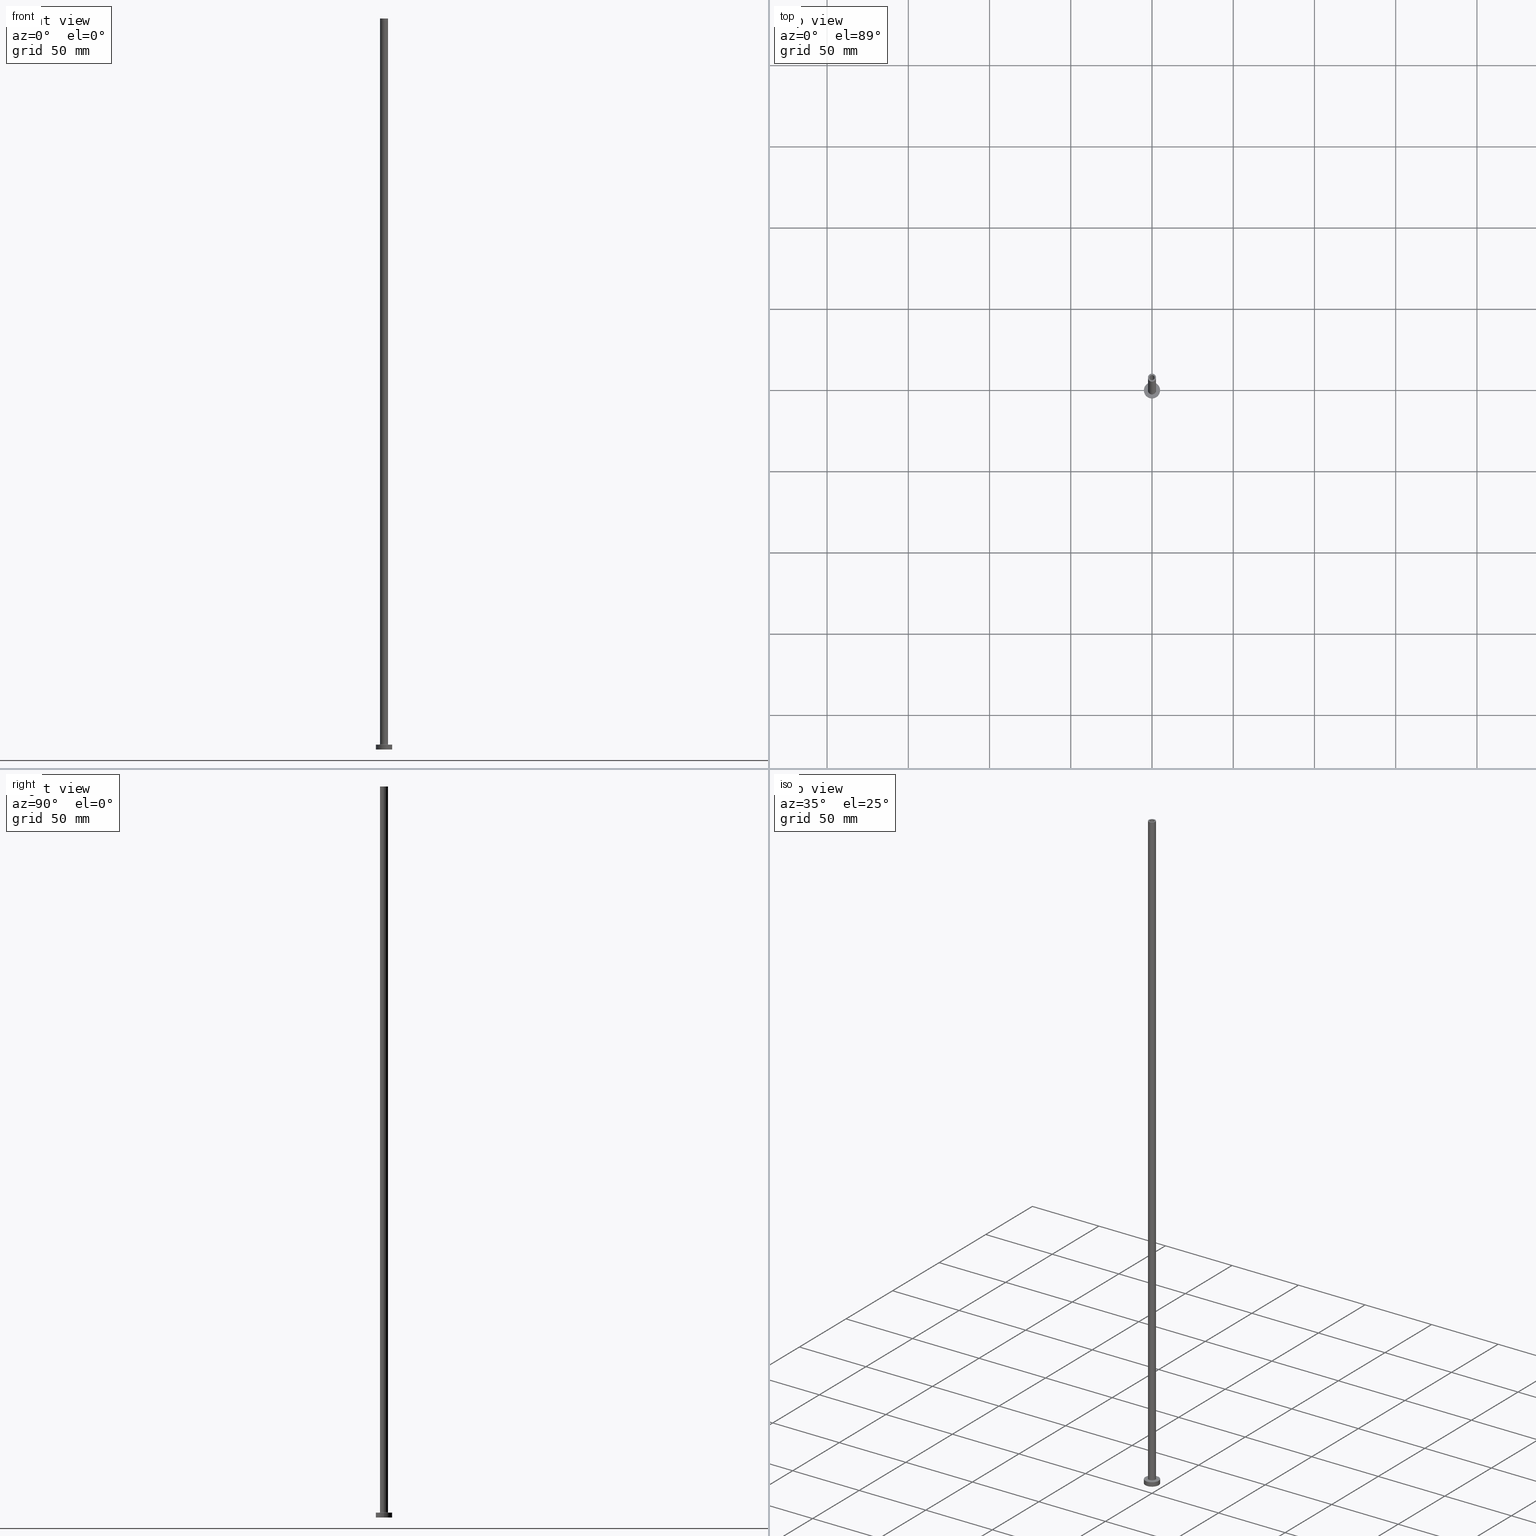
[diagram: canonical four-view strip — front | top / right | iso, engineering-drawing reading convention]
A machine part, canonical four-view strip (front | top / right | iso — engineering-drawing reading convention). The complete STEP part file that produces these views, byte-faithful:
ISO-10303-21;
HEADER;
FILE_DESCRIPTION (( 'STEP AP203' ),
    '1' );
FILE_NAME ('49ab.STEP',
    '2023-02-13T17:54:49',
    ( '' ),
    ( '' ),
    'SwSTEP 2.0',
    'SolidWorks 2019',
    '' );
FILE_SCHEMA (( 'CONFIG_CONTROL_DESIGN' ));
ENDSEC;

DATA;
#1 = CARTESIAN_POINT ( 'NONE',  ( 0.000000000000000000, 0.000000000000000000, 450.0000000000000000 ) ) ;
#2 = VERTEX_POINT ( 'NONE', #39 ) ;
#3 = DIRECTION ( 'NONE',  ( 0.000000000000000000, 0.000000000000000000, 1.000000000000000000 ) ) ;
#4 = EDGE_CURVE ( 'NONE', #168, #432, #205, .T. ) ;
#5 = DIRECTION ( 'NONE',  ( 0.000000000000000000, 0.000000000000000000, -1.000000000000000000 ) ) ;
#6 = EDGE_LOOP ( 'NONE', ( #430, #235 ) ) ;
#7 = CARTESIAN_POINT ( 'NONE',  ( 0.000000000000000000, 0.000000000000000000, 450.0000000000000000 ) ) ;
#8 = TOROIDAL_SURFACE ( 'NONE', #399, 2.799999999999999822, 0.2999999999999999889 ) ;
#9 = EDGE_CURVE ( 'NONE', #339, #111, #257, .T. ) ;
#10 = ORIENTED_EDGE ( 'NONE', *, *, #78, .F. ) ;
#11 = CYLINDRICAL_SURFACE ( 'NONE', #367, 2.500000000000000000 ) ;
#12 = AXIS2_PLACEMENT_3D ( 'NONE', #354, #447, #208 ) ;
#13 = DIRECTION ( 'NONE',  ( -0.000000000000000000, -0.000000000000000000, -1.000000000000000000 ) ) ;
#14 = ADVANCED_FACE ( 'NONE', ( #201 ), #11, .T. ) ;
#15 = DIRECTION ( 'NONE',  ( 1.000000000000000000, 0.000000000000000000, 0.000000000000000000 ) ) ;
#16 = APPROVAL_STATUS ( 'not_yet_approved' ) ;
#17 = CARTESIAN_POINT ( 'NONE',  ( 0.000000000000000000, 0.000000000000000000, 450.0000000000000000 ) ) ;
#18 = APPLICATION_PROTOCOL_DEFINITION ( 'international standard', 'config_control_design', 1994, #334 ) ;
#19 = CARTESIAN_POINT ( 'NONE',  ( 2.799999999999999822, 0.000000000000000000, 3.300000000000025135 ) ) ;
#20 = AXIS2_PLACEMENT_3D ( 'NONE', #19, #129, #382 ) ;
#21 = LOCAL_TIME ( 18, 54, 49.00000000000000000, #241 ) ;
#22 = APPROVAL_DATE_TIME ( #61, #448 ) ;
#23 = CARTESIAN_POINT ( 'NONE',  ( 0.000000000000000000, 0.000000000000000000, 450.0000000000000000 ) ) ;
#24 = SHAPE_DEFINITION_REPRESENTATION ( #452, #230 ) ;
#25 = MANIFOLD_SOLID_BREP ( 'Odebrat vysunut�m4', #414 ) ;
#26 = DATE_TIME_ROLE ( 'creation_date' ) ;
#27 = AXIS2_PLACEMENT_3D ( 'NONE', #76, #45, #405 ) ;
#28 = FACE_BOUND ( 'NONE', #149, .T. ) ;
#29 = DIRECTION ( 'NONE',  ( -0.000000000000000000, -0.000000000000000000, -1.000000000000000000 ) ) ;
#30 = EDGE_LOOP ( 'NONE', ( #256, #84, #156, #185 ) ) ;
#31 = EDGE_CURVE ( 'NONE', #259, #113, #266, .T. ) ;
#32 = FACE_BOUND ( 'NONE', #81, .T. ) ;
#33 = CARTESIAN_POINT ( 'NONE',  ( 0.000000000000000000, 0.000000000000000000, 3.000000000000000000 ) ) ;
#34 = EDGE_LOOP ( 'NONE', ( #438, #251, #379, #69 ) ) ;
#35 = ORIENTED_EDGE ( 'NONE', *, *, #214, .T. ) ;
#36 = AXIS2_PLACEMENT_3D ( 'NONE', #122, #268, #373 ) ;
#37 = FACE_OUTER_BOUND ( 'NONE', #365, .T. ) ;
#38 = CARTESIAN_POINT ( 'NONE',  ( 0.000000000000000000, 0.000000000000000000, 409.9497474683058158 ) ) ;
#39 = CARTESIAN_POINT ( 'NONE',  ( -1.600000000000000089, 0.000000000000000000, 450.0000000000000000 ) ) ;
#40 = FACE_OUTER_BOUND ( 'NONE', #30, .T. ) ;
#41 = AXIS2_PLACEMENT_3D ( 'NONE', #215, #358, #87 ) ;
#42 = EDGE_CURVE ( 'NONE', #200, #2, #171, .T. ) ;
#43 = CARTESIAN_POINT ( 'NONE',  ( 0.000000000000000000, 0.000000000000000000, 405.0000000000000000 ) ) ;
#44 = EDGE_CURVE ( 'NONE', #227, #111, #308, .T. ) ;
#45 = DIRECTION ( 'NONE',  ( 0.000000000000000000, 0.000000000000000000, 1.000000000000000000 ) ) ;
#46 = VERTEX_POINT ( 'NONE', #319 ) ;
#47 = AXIS2_PLACEMENT_3D ( 'NONE', #374, #165, #163 ) ;
#48 = CC_DESIGN_PERSON_AND_ORGANIZATION_ASSIGNMENT ( #356, #167, ( #226 ) ) ;
#49 = DIRECTION ( 'NONE',  ( 0.000000000000000000, 0.000000000000000000, -1.000000000000000000 ) ) ;
#50 = ORIENTED_EDGE ( 'NONE', *, *, #212, .F. ) ;
#51 = DIRECTION ( 'NONE',  ( 1.000000000000000000, 0.000000000000000000, 0.000000000000000000 ) ) ;
#52 = AXIS2_PLACEMENT_3D ( 'NONE', #192, #260, #300 ) ;
#53 = APPROVAL_STATUS ( 'not_yet_approved' ) ;
#54 = ORIENTED_EDGE ( 'NONE', *, *, #157, .T. ) ;
#55 = DIRECTION ( 'NONE',  ( 0.000000000000000000, 0.000000000000000000, 1.000000000000000000 ) ) ;
#56 = DATE_TIME_ROLE ( 'classification_date' ) ;
#57 = CC_DESIGN_PERSON_AND_ORGANIZATION_ASSIGNMENT ( #411, #277, ( #371 ) ) ;
#58 = DIRECTION ( 'NONE',  ( -0.000000000000000000, -0.000000000000000000, -1.000000000000000000 ) ) ;
#59 = AXIS2_PLACEMENT_3D ( 'NONE', #389, #108, #419 ) ;
#60 = CARTESIAN_POINT ( 'NONE',  ( 0.000000000000000000, 0.000000000000000000, 3.000000000000000000 ) ) ;
#61 = DATE_AND_TIME ( #90, #313 ) ;
#62 = CARTESIAN_POINT ( 'NONE',  ( -2.500000000000000000, 0.000000000000000000, 3.300000000000025135 ) ) ;
#63 = APPROVAL_DATE_TIME ( #446, #355 ) ;
#64 = CARTESIAN_POINT ( 'NONE',  ( -2.500000000000000000, 0.000000000000000000, 450.0000000000000000 ) ) ;
#65 = DIRECTION ( 'NONE',  ( 0.000000000000000000, 0.000000000000000000, -1.000000000000000000 ) ) ;
#66 = APPROVAL_PERSON_ORGANIZATION ( #97, #448, #92 ) ;
#67 = FACE_BOUND ( 'NONE', #229, .T. ) ;
#68 = FACE_OUTER_BOUND ( 'NONE', #326, .T. ) ;
#69 = ORIENTED_EDGE ( 'NONE', *, *, #9, .T. ) ;
#70 = EDGE_CURVE ( 'NONE', #360, #46, #145, .T. ) ;
#71 = CARTESIAN_POINT ( 'NONE',  ( 0.000000000000000000, 0.000000000000000000, 3.300000000000025135 ) ) ;
#72 = AXIS2_PLACEMENT_3D ( 'NONE', #71, #250, #395 ) ;
#73 = CIRCLE ( 'NONE', #417, 1.600000000000000089 ) ;
#74 = VERTEX_POINT ( 'NONE', #184 ) ;
#75 = ORIENTED_EDGE ( 'NONE', *, *, #348, .T. ) ;
#76 = CARTESIAN_POINT ( 'NONE',  ( 0.000000000000000000, 0.000000000000000000, 0.000000000000000000 ) ) ;
#77 = ORIENTED_EDGE ( 'NONE', *, *, #301, .T. ) ;
#78 = EDGE_CURVE ( 'NONE', #364, #169, #141, .T. ) ;
#79 =( LENGTH_UNIT ( ) NAMED_UNIT ( * ) SI_UNIT ( .MILLI., .METRE. ) );
#80 = CARTESIAN_POINT ( 'NONE',  ( -2.500000000000000000, 0.000000000000000000, 450.0000000000000000 ) ) ;
#81 = EDGE_LOOP ( 'NONE', ( #127, #193 ) ) ;
#82 = EDGE_LOOP ( 'NONE', ( #402, #121, #117, #394 ) ) ;
#83 = APPROVAL_PERSON_ORGANIZATION ( #314, #355, #413 ) ;
#84 = ORIENTED_EDGE ( 'NONE', *, *, #320, .T. ) ;
#85 = DIRECTION ( 'NONE',  ( -0.000000000000000000, -0.000000000000000000, -1.000000000000000000 ) ) ;
#86 = ADVANCED_FACE ( 'NONE', ( #32, #288 ), #179, .T. ) ;
#87 = DIRECTION ( 'NONE',  ( 1.000000000000000000, 0.000000000000000000, 0.000000000000000000 ) ) ;
#88 = AXIS2_PLACEMENT_3D ( 'NONE', #344, #13, #265 ) ;
#89 = DIRECTION ( 'NONE',  ( 1.000000000000000000, 0.000000000000000000, 0.000000000000000000 ) ) ;
#90 = CALENDAR_DATE ( 2023, 13, 2 ) ;
#91 = FACE_OUTER_BOUND ( 'NONE', #82, .T. ) ;
#92 = APPROVAL_ROLE ( '' ) ;
#93 = CARTESIAN_POINT ( 'NONE',  ( -2.799999999999999822, 3.429011037612589276E-16, 3.000000000000012434 ) ) ;
#94 = DIRECTION ( 'NONE',  ( -1.000000000000000000, 0.000000000000000000, 0.000000000000000000 ) ) ;
#95 = CIRCLE ( 'NONE', #52, 1.750000000000000000 ) ;
#96 = AXIS2_PLACEMENT_3D ( 'NONE', #317, #170, #450 ) ;
#97 = PERSON_AND_ORGANIZATION ( #130, #445 ) ;
#98 = DIRECTION ( 'NONE',  ( -1.000000000000000000, 0.000000000000000000, 0.000000000000000000 ) ) ;
#99 = EDGE_CURVE ( 'NONE', #287, #113, #100, .T. ) ;
#100 = LINE ( 'NONE', #423, #325 ) ;
#101 = AXIS2_PLACEMENT_3D ( 'NONE', #369, #323, #107 ) ;
#102 = DIRECTION ( 'NONE',  ( -0.000000000000000000, -0.000000000000000000, -1.000000000000000000 ) ) ;
#103 = ORIENTED_EDGE ( 'NONE', *, *, #312, .F. ) ;
#104 = CIRCLE ( 'NONE', #370, 0.2999999999999999334 ) ;
#105 = TOROIDAL_SURFACE ( 'NONE', #410, 2.799999999999999822, 0.2999999999999999889 ) ;
#106 = DIRECTION ( 'NONE',  ( -1.000000000000000000, 0.000000000000000000, 0.000000000000000000 ) ) ;
#107 = DIRECTION ( 'NONE',  ( 1.000000000000000000, 0.000000000000000000, 0.000000000000000000 ) ) ;
#108 = DIRECTION ( 'NONE',  ( 0.000000000000000000, 0.000000000000000000, 1.000000000000000000 ) ) ;
#109 = CARTESIAN_POINT ( 'NONE',  ( 0.000000000000000000, 0.000000000000000000, 0.000000000000000000 ) ) ;
#110 = ORIENTED_EDGE ( 'NONE', *, *, #197, .F. ) ;
#111 = VERTEX_POINT ( 'NONE', #219 ) ;
#112 = CYLINDRICAL_SURFACE ( 'NONE', #216, 1.750000000000000000 ) ;
#113 = VERTEX_POINT ( 'NONE', #285 ) ;
#114 = CIRCLE ( 'NONE', #154, 1.600000000000000089 ) ;
#115 = EDGE_LOOP ( 'NONE', ( #248, #342, #294, #460 ) ) ;
#116 = EDGE_LOOP ( 'NONE', ( #303, #77 ) ) ;
#117 = ORIENTED_EDGE ( 'NONE', *, *, #78, .T. ) ;
#118 = ORIENTED_EDGE ( 'NONE', *, *, #320, .F. ) ;
#119 = CARTESIAN_POINT ( 'NONE',  ( 0.000000000000000000, 0.000000000000000000, 3.000000000000000000 ) ) ;
#120 = DIRECTION ( 'NONE',  ( -1.000000000000000000, 0.000000000000000000, 0.000000000000000000 ) ) ;
#121 = ORIENTED_EDGE ( 'NONE', *, *, #153, .F. ) ;
#122 = CARTESIAN_POINT ( 'NONE',  ( 0.000000000000000000, 0.000000000000000000, 0.000000000000000000 ) ) ;
#123 = EDGE_LOOP ( 'NONE', ( #155, #299, #261, #275 ) ) ;
#124 = DIRECTION ( 'NONE',  ( -0.000000000000000000, -0.000000000000000000, -1.000000000000000000 ) ) ;
#125 = AXIS2_PLACEMENT_3D ( 'NONE', #60, #58, #352 ) ;
#126 = PERSON_AND_ORGANIZATION_ROLE ( 'design_owner' ) ;
#127 = ORIENTED_EDGE ( 'NONE', *, *, #204, .F. ) ;
#128 = SECURITY_CLASSIFICATION_LEVEL ( 'unclassified' ) ;
#129 = DIRECTION ( 'NONE',  ( 0.000000000000000000, -1.000000000000000000, 0.000000000000000000 ) ) ;
#130 = PERSON ( 'NEUR�EN�', 'NEUR�EN�', 'NEUR�EN�', ('NEUR�EN�'), ('NEUR�EN�'), ('NEUR�EN�') ) ;
#131 = CIRCLE ( 'NONE', #12, 2.500000000000000000 ) ;
#132 = EDGE_CURVE ( 'NONE', #46, #169, #383, .T. ) ;
#133 = DATE_AND_TIME ( #353, #21 ) ;
#134 = ADVANCED_FACE ( 'NONE', ( #68 ), #8, .F. ) ;
#135 = CARTESIAN_POINT ( 'NONE',  ( 0.000000000000000000, 0.000000000000000000, 450.0000000000000000 ) ) ;
#136 = CC_DESIGN_PERSON_AND_ORGANIZATION_ASSIGNMENT ( #347, #449, ( #371 ) ) ;
#137 = CIRCLE ( 'NONE', #41, 2.500000000000000000 ) ;
#138 = DIRECTION ( 'NONE',  ( 0.000000000000000000, 0.000000000000000000, -1.000000000000000000 ) ) ;
#139 = DIRECTION ( 'NONE',  ( -0.000000000000000000, -0.000000000000000000, -1.000000000000000000 ) ) ;
#140 = DIRECTION ( 'NONE',  ( 1.000000000000000000, 0.000000000000000000, -0.000000000000000000 ) ) ;
#141 = LINE ( 'NONE', #64, #318 ) ;
#142 = APPROVAL ( #16, 'NEUR�EN�' ) ;
#143 = LINE ( 'NONE', #190, #276 ) ;
#144 = ORIENTED_EDGE ( 'NONE', *, *, #153, .T. ) ;
#145 = LINE ( 'NONE', #427, #232 ) ;
#146 = LOCAL_TIME ( 18, 54, 49.00000000000000000, #176 ) ;
#147 = FACE_OUTER_BOUND ( 'NONE', #376, .T. ) ;
#148 = VERTEX_POINT ( 'NONE', #187 ) ;
#149 = EDGE_LOOP ( 'NONE', ( #293, #35 ) ) ;
#150 = LINE ( 'NONE', #247, #343 ) ;
#151 = ORIENTED_EDGE ( 'NONE', *, *, #459, .F. ) ;
#152 = CARTESIAN_POINT ( 'NONE',  ( 0.000000000000000000, 0.000000000000000000, 405.0000000000000000 ) ) ;
#153 = EDGE_CURVE ( 'NONE', #364, #360, #224, .T. ) ;
#154 = AXIS2_PLACEMENT_3D ( 'NONE', #444, #381, #15 ) ;
#155 = ORIENTED_EDGE ( 'NONE', *, *, #301, .F. ) ;
#156 = ORIENTED_EDGE ( 'NONE', *, *, #221, .F. ) ;
#157 = EDGE_CURVE ( 'NONE', #169, #168, #104, .T. ) ;
#158 = CARTESIAN_POINT ( 'NONE',  ( 0.000000000000000000, 0.000000000000000000, 450.0000000000000000 ) ) ;
#159 = ORIENTED_EDGE ( 'NONE', *, *, #368, .T. ) ;
#160 = ADVANCED_FACE ( 'NONE', ( #91 ), #349, .T. ) ;
#161 = LOCAL_TIME ( 18, 54, 49.00000000000000000, #206 ) ;
#162 = VERTEX_POINT ( 'NONE', #385 ) ;
#163 = DIRECTION ( 'NONE',  ( 1.000000000000000000, 0.000000000000000000, 0.000000000000000000 ) ) ;
#164 = DIRECTION ( 'NONE',  ( -1.000000000000000000, 0.000000000000000000, 0.000000000000000000 ) ) ;
#165 = DIRECTION ( 'NONE',  ( 0.000000000000000000, 0.000000000000000000, 1.000000000000000000 ) ) ;
#166 = LINE ( 'NONE', #346, #403 ) ;
#167 = PERSON_AND_ORGANIZATION_ROLE ( 'creator' ) ;
#168 = VERTEX_POINT ( 'NONE', #93 ) ;
#169 = VERTEX_POINT ( 'NONE', #62 ) ;
#170 = DIRECTION ( 'NONE',  ( 0.000000000000000000, 0.000000000000000000, 1.000000000000000000 ) ) ;
#171 = CIRCLE ( 'NONE', #47, 1.600000000000000089 ) ;
#172 = CALENDAR_DATE ( 2023, 13, 2 ) ;
#173 = AXIS2_PLACEMENT_3D ( 'NONE', #17, #211, #309 ) ;
#174 = LOCAL_TIME ( 18, 54, 49.00000000000000000, #440 ) ;
#175 = CYLINDRICAL_SURFACE ( 'NONE', #437, 1.750000000000000000 ) ;
#176 = COORDINATED_UNIVERSAL_TIME_OFFSET ( 1, 0, .AHEAD. ) ;
#177 = FACE_OUTER_BOUND ( 'NONE', #289, .T. ) ;
#178 = EDGE_CURVE ( 'NONE', #46, #432, #196, .T. ) ;
#179 = PLANE ( 'NONE',  #59 ) ;
#180 = AXIS2_PLACEMENT_3D ( 'NONE', #441, #85, #345 ) ;
#181 = AXIS2_PLACEMENT_3D ( 'NONE', #43, #3, #237 ) ;
#182 = DIRECTION ( 'NONE',  ( -0.000000000000000000, -0.000000000000000000, -1.000000000000000000 ) ) ;
#183 = FACE_OUTER_BOUND ( 'NONE', #213, .T. ) ;
#184 = CARTESIAN_POINT ( 'NONE',  ( -1.600000000000000089, 0.000000000000000000, 405.0000000000000000 ) ) ;
#185 = ORIENTED_EDGE ( 'NONE', *, *, #368, .F. ) ;
#186 = DIRECTION ( 'NONE',  ( 1.000000000000000000, 0.000000000000000000, -0.000000000000000000 ) ) ;
#187 = CARTESIAN_POINT ( 'NONE',  ( -1.750000000000000000, 0.000000000000000000, 405.0000000000000000 ) ) ;
#188 = UNCERTAINTY_MEASURE_WITH_UNIT (LENGTH_MEASURE( 1.000000000000000082E-05 ), #79, 'distance_accuracy_value', 'NONE');
#189 = EDGE_CURVE ( 'NONE', #307, #339, #166, .T. ) ;
#190 = CARTESIAN_POINT ( 'NONE',  ( 1.600000000000000089, 1.959434878635764737E-16, 450.0000000000000000 ) ) ;
#191 = EDGE_LOOP ( 'NONE', ( #50, #329, #424, #10 ) ) ;
#192 = CARTESIAN_POINT ( 'NONE',  ( 0.000000000000000000, 0.000000000000000000, 405.0000000000000000 ) ) ;
#193 = ORIENTED_EDGE ( 'NONE', *, *, #42, .F. ) ;
#194 = ADVANCED_FACE ( 'NONE', ( #177 ), #175, .F. ) ;
#195 = APPLICATION_PROTOCOL_DEFINITION ( 'international standard', 'config_control_design', 1994, #311 ) ;
#196 = CIRCLE ( 'NONE', #20, 0.2999999999999999334 ) ;
#197 = EDGE_CURVE ( 'NONE', #432, #168, #386, .T. ) ;
#198 = AXIS2_PLACEMENT_3D ( 'NONE', #1, #322, #106 ) ;
#199 = CARTESIAN_POINT ( 'NONE',  ( 2.500000000000000000, 3.061616997868383141E-16, 450.0000000000000000 ) ) ;
#200 = VERTEX_POINT ( 'NONE', #442 ) ;
#201 = FACE_OUTER_BOUND ( 'NONE', #191, .T. ) ;
#202 = DIRECTION ( 'NONE',  ( 1.000000000000000000, 0.000000000000000000, 0.000000000000000000 ) ) ;
#203 = CALENDAR_DATE ( 2023, 13, 2 ) ;
#204 = EDGE_CURVE ( 'NONE', #2, #200, #73, .T. ) ;
#205 = CIRCLE ( 'NONE', #101, 2.799999999999999822 ) ;
#206 = COORDINATED_UNIVERSAL_TIME_OFFSET ( 1, 0, .AHEAD. ) ;
#207 = CC_DESIGN_SECURITY_CLASSIFICATION ( #233, ( #371 ) ) ;
#208 = DIRECTION ( 'NONE',  ( 1.000000000000000000, 0.000000000000000000, 0.000000000000000000 ) ) ;
#209 = PRODUCT_RELATED_PRODUCT_CATEGORY ( 'detail', '', ( #316 ) ) ;
#210 = COORDINATED_UNIVERSAL_TIME_OFFSET ( 1, 0, .AHEAD. ) ;
#211 = DIRECTION ( 'NONE',  ( -0.000000000000000000, -0.000000000000000000, -1.000000000000000000 ) ) ;
#212 = EDGE_CURVE ( 'NONE', #360, #364, #131, .T. ) ;
#213 = EDGE_LOOP ( 'NONE', ( #236, #262 ) ) ;
#214 = EDGE_CURVE ( 'NONE', #162, #74, #114, .T. ) ;
#215 = CARTESIAN_POINT ( 'NONE',  ( 0.000000000000000000, 0.000000000000000000, 3.300000000000025135 ) ) ;
#216 = AXIS2_PLACEMENT_3D ( 'NONE', #38, #331, #98 ) ;
#217 = EDGE_CURVE ( 'NONE', #307, #227, #305, .T. ) ;
#218 = DIRECTION ( 'NONE',  ( 1.000000000000000000, 0.000000000000000000, 0.000000000000000000 ) ) ;
#219 = CARTESIAN_POINT ( 'NONE',  ( 5.000000000000000000, 6.123233995736766282E-16, 0.000000000000000000 ) ) ;
#220 = FACE_OUTER_BOUND ( 'NONE', #297, .T. ) ;
#221 = EDGE_CURVE ( 'NONE', #74, #162, #298, .T. ) ;
#222 = DIRECTION ( 'NONE',  ( 1.000000000000000000, 0.000000000000000000, 0.000000000000000000 ) ) ;
#223 = EDGE_LOOP ( 'NONE', ( #144, #407 ) ) ;
#224 = CIRCLE ( 'NONE', #258, 2.500000000000000000 ) ;
#225 = APPROVAL_PERSON_ORGANIZATION ( #281, #142, #408 ) ;
#226 = PRODUCT_DEFINITION ( 'NEZN�M�', '', #371, #456 ) ;
#227 = VERTEX_POINT ( 'NONE', #412 ) ;
#228 = PLANE ( 'NONE',  #350 ) ;
#229 = EDGE_LOOP ( 'NONE', ( #359, #436 ) ) ;
#230 = ADVANCED_BREP_SHAPE_REPRESENTATION ( '49ab', ( #25, #36 ), #357 ) ;
#231 = CC_DESIGN_DATE_AND_TIME_ASSIGNMENT ( #245, #26, ( #226 ) ) ;
#232 = VECTOR ( 'NONE', #29, 1000.000000000000000 ) ;
#233 = SECURITY_CLASSIFICATION ( '', '', #128 ) ;
#234 =( NAMED_UNIT ( * ) PLANE_ANGLE_UNIT ( ) SI_UNIT ( $, .RADIAN. ) );
#235 = ORIENTED_EDGE ( 'NONE', *, *, #391, .F. ) ;
#236 = ORIENTED_EDGE ( 'NONE', *, *, #348, .F. ) ;
#237 = DIRECTION ( 'NONE',  ( 1.000000000000000000, 0.000000000000000000, 0.000000000000000000 ) ) ;
#238 = ADVANCED_FACE ( 'NONE', ( #242 ), #255, .T. ) ;
#239 = CIRCLE ( 'NONE', #27, 5.000000000000000000 ) ;
#240 = DIRECTION ( 'NONE',  ( 0.000000000000000000, 0.000000000000000000, -1.000000000000000000 ) ) ;
#241 = COORDINATED_UNIVERSAL_TIME_OFFSET ( 1, 0, .AHEAD. ) ;
#242 = FACE_OUTER_BOUND ( 'NONE', #34, .T. ) ;
#243 = DATE_AND_TIME ( #351, #174 ) ;
#244 = AXIS2_PLACEMENT_3D ( 'NONE', #158, #5, #164 ) ;
#245 = DATE_AND_TIME ( #172, #161 ) ;
#246 = CARTESIAN_POINT ( 'NONE',  ( -5.000000000000000000, 0.000000000000000000, 0.000000000000000000 ) ) ;
#247 = CARTESIAN_POINT ( 'NONE',  ( -1.750000000000000000, 0.000000000000000000, 409.9497474683058158 ) ) ;
#248 = ORIENTED_EDGE ( 'NONE', *, *, #99, .F. ) ;
#249 = AXIS2_PLACEMENT_3D ( 'NONE', #152, #286, #296 ) ;
#250 = DIRECTION ( 'NONE',  ( 0.000000000000000000, 0.000000000000000000, 1.000000000000000000 ) ) ;
#251 = ORIENTED_EDGE ( 'NONE', *, *, #217, .F. ) ;
#252 = FACE_OUTER_BOUND ( 'NONE', #116, .T. ) ;
#253 = CARTESIAN_POINT ( 'NONE',  ( 0.000000000000000000, 0.000000000000000000, 0.000000000000000000 ) ) ;
#254 = DIRECTION ( 'NONE',  ( 0.000000000000000000, 0.000000000000000000, 1.000000000000000000 ) ) ;
#255 = CYLINDRICAL_SURFACE ( 'NONE', #378, 5.000000000000000000 ) ;
#256 = ORIENTED_EDGE ( 'NONE', *, *, #204, .T. ) ;
#257 = CIRCLE ( 'NONE', #455, 5.000000000000000000 ) ;
#258 = AXIS2_PLACEMENT_3D ( 'NONE', #135, #55, #89 ) ;
#259 = VERTEX_POINT ( 'NONE', #428 ) ;
#260 = DIRECTION ( 'NONE',  ( 0.000000000000000000, 0.000000000000000000, 1.000000000000000000 ) ) ;
#261 = ORIENTED_EDGE ( 'NONE', *, *, #459, .T. ) ;
#262 = ORIENTED_EDGE ( 'NONE', *, *, #384, .F. ) ;
#263 = CARTESIAN_POINT ( 'NONE',  ( -1.600000000000000089, 0.000000000000000000, 450.0000000000000000 ) ) ;
#264 = ORIENTED_EDGE ( 'NONE', *, *, #132, .F. ) ;
#265 = DIRECTION ( 'NONE',  ( 1.000000000000000000, 0.000000000000000000, 0.000000000000000000 ) ) ;
#266 = CIRCLE ( 'NONE', #180, 1.750000000000000000 ) ;
#267 = DIRECTION ( 'NONE',  ( 0.000000000000000000, 0.000000000000000000, 1.000000000000000000 ) ) ;
#268 = DIRECTION ( 'NONE',  ( 0.000000000000000000, 0.000000000000000000, 1.000000000000000000 ) ) ;
#269 = ORIENTED_EDGE ( 'NONE', *, *, #4, .F. ) ;
#270 = PERSON_AND_ORGANIZATION ( #130, #445 ) ;
#271 = ADVANCED_FACE ( 'NONE', ( #147 ), #426, .F. ) ;
#272 = CARTESIAN_POINT ( 'NONE',  ( 5.000000000000000000, 6.123233995736766282E-16, 3.000000000000000000 ) ) ;
#273 = DIRECTION ( 'NONE',  ( -0.000000000000000000, -0.000000000000000000, -1.000000000000000000 ) ) ;
#274 = ADVANCED_FACE ( 'NONE', ( #67, #252 ), #396, .T. ) ;
#275 = ORIENTED_EDGE ( 'NONE', *, *, #189, .F. ) ;
#276 = VECTOR ( 'NONE', #290, 1000.000000000000000 ) ;
#277 = PERSON_AND_ORGANIZATION_ROLE ( 'design_supplier' ) ;
#278 = DIRECTION ( 'NONE',  ( 1.000000000000000000, 0.000000000000000000, 0.000000000000000000 ) ) ;
#279 = ADVANCED_FACE ( 'NONE', ( #28, #183 ), #330, .F. ) ;
#280 = DIRECTION ( 'NONE',  ( 0.000000000000000000, 0.000000000000000000, 1.000000000000000000 ) ) ;
#281 = PERSON_AND_ORGANIZATION ( #130, #445 ) ;
#282 = CARTESIAN_POINT ( 'NONE',  ( 0.000000000000000000, 0.000000000000000000, 405.0000000000000000 ) ) ;
#283 = AXIS2_PLACEMENT_3D ( 'NONE', #33, #327, #140 ) ;
#284 = ADVANCED_FACE ( 'NONE', ( #37 ), #105, .F. ) ;
#285 = CARTESIAN_POINT ( 'NONE',  ( 1.750000000000000000, 2.143131898507868297E-16, 0.000000000000000000 ) ) ;
#286 = DIRECTION ( 'NONE',  ( 0.000000000000000000, 0.000000000000000000, 1.000000000000000000 ) ) ;
#287 = VERTEX_POINT ( 'NONE', #461 ) ;
#288 = FACE_OUTER_BOUND ( 'NONE', #223, .T. ) ;
#289 = EDGE_LOOP ( 'NONE', ( #75, #398, #366, #103 ) ) ;
#290 = DIRECTION ( 'NONE',  ( 0.000000000000000000, 0.000000000000000000, -1.000000000000000000 ) ) ;
#291 = AXIS2_PLACEMENT_3D ( 'NONE', #282, #377, #278 ) ;
#292 = CC_DESIGN_DATE_AND_TIME_ASSIGNMENT ( #133, #56, ( #233 ) ) ;
#293 = ORIENTED_EDGE ( 'NONE', *, *, #221, .T. ) ;
#294 = ORIENTED_EDGE ( 'NONE', *, *, #312, .T. ) ;
#295 = ADVANCED_FACE ( 'NONE', ( #454, #220 ), #228, .F. ) ;
#296 = DIRECTION ( 'NONE',  ( 1.000000000000000000, 0.000000000000000000, -0.000000000000000000 ) ) ;
#297 = EDGE_LOOP ( 'NONE', ( #457, #151 ) ) ;
#298 = CIRCLE ( 'NONE', #291, 1.600000000000000089 ) ;
#299 = ORIENTED_EDGE ( 'NONE', *, *, #44, .T. ) ;
#300 = DIRECTION ( 'NONE',  ( 1.000000000000000000, 0.000000000000000000, 0.000000000000000000 ) ) ;
#301 = EDGE_CURVE ( 'NONE', #227, #307, #451, .T. ) ;
#302 = ORIENTED_EDGE ( 'NONE', *, *, #214, .F. ) ;
#303 = ORIENTED_EDGE ( 'NONE', *, *, #217, .T. ) ;
#304 = AXIS2_PLACEMENT_3D ( 'NONE', #397, #421, #222 ) ;
#305 = CIRCLE ( 'NONE', #96, 5.000000000000000000 ) ;
#306 = CC_DESIGN_PERSON_AND_ORGANIZATION_ASSIGNMENT ( #270, #126, ( #316 ) ) ;
#307 = VERTEX_POINT ( 'NONE', #361 ) ;
#308 = LINE ( 'NONE', #272, #422 ) ;
#309 = DIRECTION ( 'NONE',  ( -1.000000000000000000, 0.000000000000000000, 0.000000000000000000 ) ) ;
#310 = PERSON_AND_ORGANIZATION ( #130, #445 ) ;
#311 = APPLICATION_CONTEXT ( 'configuration controlled 3d designs of mechanical parts and assemblies' ) ;
#312 = EDGE_CURVE ( 'NONE', #148, #259, #150, .T. ) ;
#313 = LOCAL_TIME ( 18, 54, 49.00000000000000000, #210 ) ;
#314 = PERSON_AND_ORGANIZATION ( #130, #445 ) ;
#315 = CARTESIAN_POINT ( 'NONE',  ( 0.000000000000000000, 0.000000000000000000, 409.9497474683058158 ) ) ;
#316 = PRODUCT ( '49ab', '49ab', '', ( #341 ) ) ;
#317 = CARTESIAN_POINT ( 'NONE',  ( 0.000000000000000000, 0.000000000000000000, 3.000000000000000000 ) ) ;
#318 = VECTOR ( 'NONE', #139, 1000.000000000000000 ) ;
#319 = CARTESIAN_POINT ( 'NONE',  ( 2.500000000000000000, 3.061616997868383141E-16, 3.300000000000025135 ) ) ;
#320 = EDGE_CURVE ( 'NONE', #200, #162, #143, .T. ) ;
#321 = ORIENTED_EDGE ( 'NONE', *, *, #157, .F. ) ;
#322 = DIRECTION ( 'NONE',  ( 0.000000000000000000, 0.000000000000000000, -1.000000000000000000 ) ) ;
#323 = DIRECTION ( 'NONE',  ( -0.000000000000000000, -0.000000000000000000, -1.000000000000000000 ) ) ;
#324 = CARTESIAN_POINT ( 'NONE',  ( 0.000000000000000000, 0.000000000000000000, 3.300000000000025135 ) ) ;
#325 = VECTOR ( 'NONE', #138, 1000.000000000000000 ) ;
#326 = EDGE_LOOP ( 'NONE', ( #416, #54, #110, #332 ) ) ;
#327 = DIRECTION ( 'NONE',  ( 0.000000000000000000, 0.000000000000000000, 1.000000000000000000 ) ) ;
#328 = CIRCLE ( 'NONE', #88, 1.750000000000000000 ) ;
#329 = ORIENTED_EDGE ( 'NONE', *, *, #70, .T. ) ;
#330 = PLANE ( 'NONE',  #249 ) ;
#331 = DIRECTION ( 'NONE',  ( 0.000000000000000000, 0.000000000000000000, -1.000000000000000000 ) ) ;
#332 = ORIENTED_EDGE ( 'NONE', *, *, #178, .F. ) ;
#333 = CYLINDRICAL_SURFACE ( 'NONE', #433, 5.000000000000000000 ) ;
#334 = APPLICATION_CONTEXT ( 'configuration controlled 3d designs of mechanical parts and assemblies' ) ;
#335 = CIRCLE ( 'NONE', #181, 1.750000000000000000 ) ;
#336 =( NAMED_UNIT ( * ) SI_UNIT ( $, .STERADIAN. ) SOLID_ANGLE_UNIT ( ) );
#337 = ORIENTED_EDGE ( 'NONE', *, *, #42, .T. ) ;
#338 = ADVANCED_FACE ( 'NONE', ( #429 ), #112, .F. ) ;
#339 = VERTEX_POINT ( 'NONE', #246 ) ;
#340 = EDGE_CURVE ( 'NONE', #169, #46, #137, .T. ) ;
#341 = MECHANICAL_CONTEXT ( 'NONE', #311, 'mechanical' ) ;
#342 = ORIENTED_EDGE ( 'NONE', *, *, #384, .T. ) ;
#343 = VECTOR ( 'NONE', #65, 1000.000000000000000 ) ;
#344 = CARTESIAN_POINT ( 'NONE',  ( 0.000000000000000000, 0.000000000000000000, 0.000000000000000000 ) ) ;
#345 = DIRECTION ( 'NONE',  ( 1.000000000000000000, 0.000000000000000000, 0.000000000000000000 ) ) ;
#346 = CARTESIAN_POINT ( 'NONE',  ( -5.000000000000000000, 0.000000000000000000, 3.000000000000000000 ) ) ;
#347 = PERSON_AND_ORGANIZATION ( #130, #445 ) ;
#348 = EDGE_CURVE ( 'NONE', #148, #287, #335, .T. ) ;
#349 = CYLINDRICAL_SURFACE ( 'NONE', #173, 2.500000000000000000 ) ;
#350 = AXIS2_PLACEMENT_3D ( 'NONE', #109, #363, #186 ) ;
#351 = CALENDAR_DATE ( 2023, 13, 2 ) ;
#352 = DIRECTION ( 'NONE',  ( 1.000000000000000000, 0.000000000000000000, 0.000000000000000000 ) ) ;
#353 = CALENDAR_DATE ( 2023, 13, 2 ) ;
#354 = CARTESIAN_POINT ( 'NONE',  ( 0.000000000000000000, 0.000000000000000000, 450.0000000000000000 ) ) ;
#355 = APPROVAL ( #53, 'NEUR�EN�' ) ;
#356 = PERSON_AND_ORGANIZATION ( #130, #445 ) ;
#357 =( GEOMETRIC_REPRESENTATION_CONTEXT ( 3 ) GLOBAL_UNCERTAINTY_ASSIGNED_CONTEXT ( ( #188 ) ) GLOBAL_UNIT_ASSIGNED_CONTEXT ( ( #79, #234, #336 ) ) REPRESENTATION_CONTEXT ( 'NONE', 'WORKASPACE' ) );
#358 = DIRECTION ( 'NONE',  ( 0.000000000000000000, 0.000000000000000000, 1.000000000000000000 ) ) ;
#359 = ORIENTED_EDGE ( 'NONE', *, *, #197, .T. ) ;
#360 = VERTEX_POINT ( 'NONE', #199 ) ;
#361 = CARTESIAN_POINT ( 'NONE',  ( -5.000000000000000000, 0.000000000000000000, 3.000000000000000000 ) ) ;
#362 = CC_DESIGN_APPROVAL ( #448, ( #226 ) ) ;
#363 = DIRECTION ( 'NONE',  ( 0.000000000000000000, 0.000000000000000000, 1.000000000000000000 ) ) ;
#364 = VERTEX_POINT ( 'NONE', #80 ) ;
#365 = EDGE_LOOP ( 'NONE', ( #321, #264, #400, #269 ) ) ;
#366 = ORIENTED_EDGE ( 'NONE', *, *, #391, .T. ) ;
#367 = AXIS2_PLACEMENT_3D ( 'NONE', #7, #124, #406 ) ;
#368 = EDGE_CURVE ( 'NONE', #2, #74, #375, .T. ) ;
#369 = CARTESIAN_POINT ( 'NONE',  ( 0.000000000000000000, 0.000000000000000000, 3.000000000000000000 ) ) ;
#370 = AXIS2_PLACEMENT_3D ( 'NONE', #388, #415, #409 ) ;
#371 = PRODUCT_DEFINITION_FORMATION_WITH_SPECIFIED_SOURCE ( 'LIBOVOLN�', '', #316, .NOT_KNOWN. ) ;
#372 = CC_DESIGN_PERSON_AND_ORGANIZATION_ASSIGNMENT ( #310, #443, ( #233 ) ) ;
#373 = DIRECTION ( 'NONE',  ( 1.000000000000000000, 0.000000000000000000, 0.000000000000000000 ) ) ;
#374 = CARTESIAN_POINT ( 'NONE',  ( 0.000000000000000000, 0.000000000000000000, 450.0000000000000000 ) ) ;
#375 = LINE ( 'NONE', #263, #392 ) ;
#376 = EDGE_LOOP ( 'NONE', ( #118, #337, #159, #302 ) ) ;
#377 = DIRECTION ( 'NONE',  ( 0.000000000000000000, 0.000000000000000000, 1.000000000000000000 ) ) ;
#378 = AXIS2_PLACEMENT_3D ( 'NONE', #453, #102, #458 ) ;
#379 = ORIENTED_EDGE ( 'NONE', *, *, #189, .T. ) ;
#380 = APPROVAL_DATE_TIME ( #243, #142 ) ;
#381 = DIRECTION ( 'NONE',  ( 0.000000000000000000, 0.000000000000000000, 1.000000000000000000 ) ) ;
#382 = DIRECTION ( 'NONE',  ( 0.000000000000000000, 0.000000000000000000, -1.000000000000000000 ) ) ;
#383 = CIRCLE ( 'NONE', #72, 2.500000000000000000 ) ;
#384 = EDGE_CURVE ( 'NONE', #287, #148, #95, .T. ) ;
#385 = CARTESIAN_POINT ( 'NONE',  ( 1.600000000000000089, 1.959434878635764737E-16, 405.0000000000000000 ) ) ;
#386 = CIRCLE ( 'NONE', #125, 2.799999999999999822 ) ;
#387 = APPROVAL_STATUS ( 'not_yet_approved' ) ;
#388 = CARTESIAN_POINT ( 'NONE',  ( -2.799999999999999822, 3.429011037612588783E-16, 3.300000000000025135 ) ) ;
#389 = CARTESIAN_POINT ( 'NONE',  ( 0.000000000000000000, 0.000000000000000000, 450.0000000000000000 ) ) ;
#390 = CARTESIAN_POINT ( 'NONE',  ( 0.000000000000000000, 0.000000000000000000, 3.300000000000025135 ) ) ;
#391 = EDGE_CURVE ( 'NONE', #113, #259, #328, .T. ) ;
#392 = VECTOR ( 'NONE', #49, 1000.000000000000000 ) ;
#393 = DIRECTION ( 'NONE',  ( 0.000000000000000000, 0.000000000000000000, 1.000000000000000000 ) ) ;
#394 = ORIENTED_EDGE ( 'NONE', *, *, #340, .T. ) ;
#395 = DIRECTION ( 'NONE',  ( 1.000000000000000000, 0.000000000000000000, 0.000000000000000000 ) ) ;
#396 = PLANE ( 'NONE',  #283 ) ;
#397 = CARTESIAN_POINT ( 'NONE',  ( 0.000000000000000000, 0.000000000000000000, 3.000000000000000000 ) ) ;
#398 = ORIENTED_EDGE ( 'NONE', *, *, #99, .T. ) ;
#399 = AXIS2_PLACEMENT_3D ( 'NONE', #324, #254, #418 ) ;
#400 = ORIENTED_EDGE ( 'NONE', *, *, #178, .T. ) ;
#401 = DIRECTION ( 'NONE',  ( -0.000000000000000000, -0.000000000000000000, -1.000000000000000000 ) ) ;
#402 = ORIENTED_EDGE ( 'NONE', *, *, #70, .F. ) ;
#403 = VECTOR ( 'NONE', #273, 1000.000000000000000 ) ;
#404 = CC_DESIGN_APPROVAL ( #355, ( #233 ) ) ;
#405 = DIRECTION ( 'NONE',  ( 1.000000000000000000, 0.000000000000000000, 0.000000000000000000 ) ) ;
#406 = DIRECTION ( 'NONE',  ( -1.000000000000000000, 0.000000000000000000, 0.000000000000000000 ) ) ;
#407 = ORIENTED_EDGE ( 'NONE', *, *, #212, .T. ) ;
#408 = APPROVAL_ROLE ( '' ) ;
#409 = DIRECTION ( 'NONE',  ( -1.000000000000000000, 1.224646799147353207E-16, 0.000000000000000000 ) ) ;
#410 = AXIS2_PLACEMENT_3D ( 'NONE', #390, #393, #218 ) ;
#411 = PERSON_AND_ORGANIZATION ( #130, #445 ) ;
#412 = CARTESIAN_POINT ( 'NONE',  ( 5.000000000000000000, 6.123233995736766282E-16, 3.000000000000000000 ) ) ;
#413 = APPROVAL_ROLE ( '' ) ;
#414 = CLOSED_SHELL ( 'NONE', ( #420, #194, #134, #14, #439, #238, #274, #295, #160, #86, #284, #338, #279, #271 ) ) ;
#415 = DIRECTION ( 'NONE',  ( 1.224646799147353207E-16, 1.000000000000000000, -0.000000000000000000 ) ) ;
#416 = ORIENTED_EDGE ( 'NONE', *, *, #340, .F. ) ;
#417 = AXIS2_PLACEMENT_3D ( 'NONE', #23, #280, #202 ) ;
#418 = DIRECTION ( 'NONE',  ( 1.000000000000000000, 0.000000000000000000, 0.000000000000000000 ) ) ;
#419 = DIRECTION ( 'NONE',  ( 1.000000000000000000, 0.000000000000000000, -0.000000000000000000 ) ) ;
#420 = ADVANCED_FACE ( 'NONE', ( #40 ), #434, .F. ) ;
#421 = DIRECTION ( 'NONE',  ( 0.000000000000000000, 0.000000000000000000, 1.000000000000000000 ) ) ;
#422 = VECTOR ( 'NONE', #182, 1000.000000000000000 ) ;
#423 = CARTESIAN_POINT ( 'NONE',  ( 1.750000000000000000, 2.143131898507868297E-16, 409.9497474683058158 ) ) ;
#424 = ORIENTED_EDGE ( 'NONE', *, *, #132, .T. ) ;
#425 = CC_DESIGN_APPROVAL ( #142, ( #371 ) ) ;
#426 = CYLINDRICAL_SURFACE ( 'NONE', #198, 1.600000000000000089 ) ;
#427 = CARTESIAN_POINT ( 'NONE',  ( 2.500000000000000000, 3.061616997868383141E-16, 450.0000000000000000 ) ) ;
#428 = CARTESIAN_POINT ( 'NONE',  ( -1.750000000000000000, 0.000000000000000000, 0.000000000000000000 ) ) ;
#429 = FACE_OUTER_BOUND ( 'NONE', #115, .T. ) ;
#430 = ORIENTED_EDGE ( 'NONE', *, *, #31, .F. ) ;
#431 = FACE_OUTER_BOUND ( 'NONE', #123, .T. ) ;
#432 = VERTEX_POINT ( 'NONE', #435 ) ;
#433 = AXIS2_PLACEMENT_3D ( 'NONE', #119, #401, #120 ) ;
#434 = CYLINDRICAL_SURFACE ( 'NONE', #244, 1.600000000000000089 ) ;
#435 = CARTESIAN_POINT ( 'NONE',  ( 2.799999999999999822, 0.000000000000000000, 3.000000000000012434 ) ) ;
#436 = ORIENTED_EDGE ( 'NONE', *, *, #4, .T. ) ;
#437 = AXIS2_PLACEMENT_3D ( 'NONE', #315, #240, #94 ) ;
#438 = ORIENTED_EDGE ( 'NONE', *, *, #44, .F. ) ;
#439 = ADVANCED_FACE ( 'NONE', ( #431 ), #333, .T. ) ;
#440 = COORDINATED_UNIVERSAL_TIME_OFFSET ( 1, 0, .AHEAD. ) ;
#441 = CARTESIAN_POINT ( 'NONE',  ( 0.000000000000000000, 0.000000000000000000, 0.000000000000000000 ) ) ;
#442 = CARTESIAN_POINT ( 'NONE',  ( 1.600000000000000089, 1.959434878635764737E-16, 450.0000000000000000 ) ) ;
#443 = PERSON_AND_ORGANIZATION_ROLE ( 'classification_officer' ) ;
#444 = CARTESIAN_POINT ( 'NONE',  ( 0.000000000000000000, 0.000000000000000000, 405.0000000000000000 ) ) ;
#445 = ORGANIZATION ( 'NEUR�EN�', 'NEUR�EN�', '' ) ;
#446 = DATE_AND_TIME ( #203, #146 ) ;
#447 = DIRECTION ( 'NONE',  ( 0.000000000000000000, 0.000000000000000000, 1.000000000000000000 ) ) ;
#448 = APPROVAL ( #387, 'NEUR�EN�' ) ;
#449 = PERSON_AND_ORGANIZATION_ROLE ( 'creator' ) ;
#450 = DIRECTION ( 'NONE',  ( 1.000000000000000000, 0.000000000000000000, 0.000000000000000000 ) ) ;
#451 = CIRCLE ( 'NONE', #304, 5.000000000000000000 ) ;
#452 = PRODUCT_DEFINITION_SHAPE ( 'NONE', 'NONE',  #226 ) ;
#453 = CARTESIAN_POINT ( 'NONE',  ( 0.000000000000000000, 0.000000000000000000, 3.000000000000000000 ) ) ;
#454 = FACE_BOUND ( 'NONE', #6, .T. ) ;
#455 = AXIS2_PLACEMENT_3D ( 'NONE', #253, #267, #51 ) ;
#456 = DESIGN_CONTEXT ( 'detailed design', #334, 'design' ) ;
#457 = ORIENTED_EDGE ( 'NONE', *, *, #9, .F. ) ;
#458 = DIRECTION ( 'NONE',  ( -1.000000000000000000, 0.000000000000000000, 0.000000000000000000 ) ) ;
#459 = EDGE_CURVE ( 'NONE', #111, #339, #239, .T. ) ;
#460 = ORIENTED_EDGE ( 'NONE', *, *, #31, .T. ) ;
#461 = CARTESIAN_POINT ( 'NONE',  ( 1.750000000000000000, 2.143131898507868297E-16, 405.0000000000000000 ) ) ;
ENDSEC;
END-ISO-10303-21;
